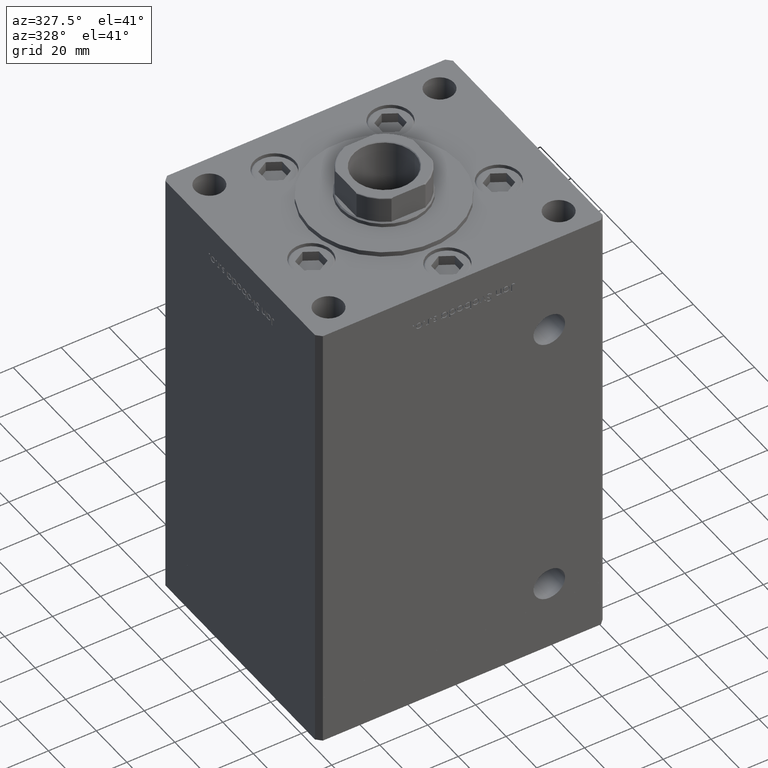
[diagram: clean part render]
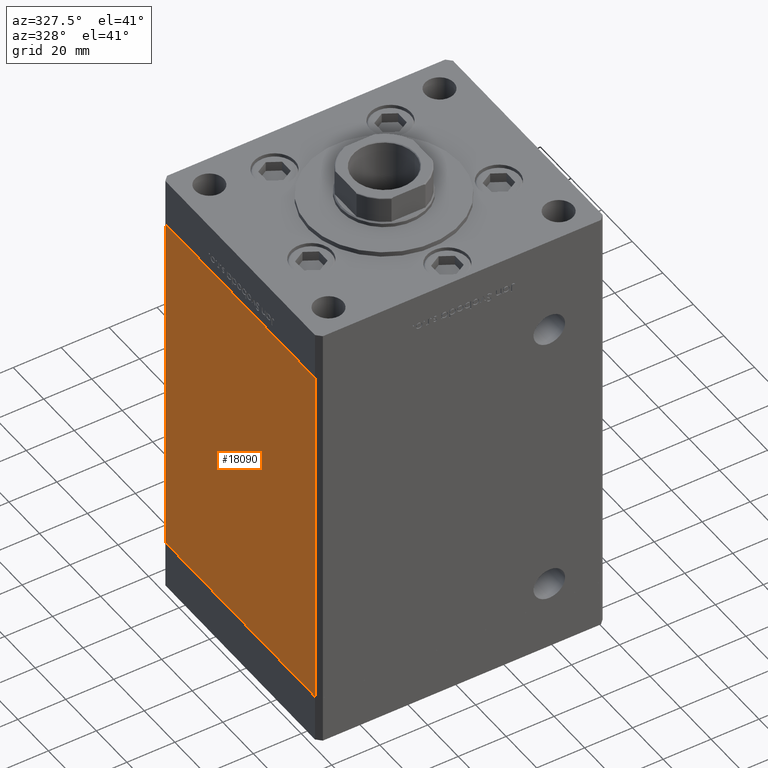
[diagram: same view with one face highlighted and labeled with its STEP entity id]
A machine part, auxiliary view. The second image highlights one B-rep face of the part: STEP entity #18090.
In plain terms, the highlighted planar face has unit normal (1, 0, 0).
Its self-contained STEP definition (entity closure, byte-faithful):
#484 = ORIENTED_EDGE ( 'NONE', *, *, #32690, .F. ) ;
#500 = FACE_OUTER_BOUND ( 'NONE', #3745, .T. ) ;
#3162 = ORIENTED_EDGE ( 'NONE', *, *, #49198, .T. ) ;
#3359 = DIRECTION ( 'NONE',  ( 2.832201593431521726E-16, -1.000000000000000000, 0.000000000000000000 ) ) ;
#3666 = VECTOR ( 'NONE', #4375, 1000.000000000000000 ) ;
#3745 = EDGE_LOOP ( 'NONE', ( #33257, #484, #36085, #3162 ) ) ;
#4375 = DIRECTION ( 'NONE',  ( -0.000000000000000000, -0.000000000000000000, -1.000000000000000000 ) ) ;
#4445 = DIRECTION ( 'NONE',  ( 1.000000000000000000, 2.832201593431521726E-16, -0.000000000000000000 ) ) ;
#5383 = LINE ( 'NONE', #13266, #39351 ) ;
#5791 = CARTESIAN_POINT ( 'NONE',  ( -59.99999999999998579, -49.00000000000000000, 0.000000000000000000 ) ) ;
#7188 = VERTEX_POINT ( 'NONE', #12984 ) ;
#7659 = VECTOR ( 'NONE', #51024, 1000.000000000000000 ) ;
#9552 = VERTEX_POINT ( 'NONE', #20081 ) ;
#12984 = CARTESIAN_POINT ( 'NONE',  ( -60.00000000000001421, 49.00000000000000000, 0.000000000000000000 ) ) ;
#13266 = CARTESIAN_POINT ( 'NONE',  ( -60.00000000000001421, 49.00000000000000000, 148.5000000000000000 ) ) ;
#18090 = ADVANCED_FACE ( 'NONE', ( #500 ), #24205, .F. ) ;
#18849 = VECTOR ( 'NONE', #3359, 1000.000000000000000 ) ;
#19660 = CARTESIAN_POINT ( 'NONE',  ( -59.99999999999998579, -49.00000000000000000, 148.5000000000000000 ) ) ;
#19855 = AXIS2_PLACEMENT_3D ( 'NONE', #32887, #4445, #21032 ) ;
#20081 = CARTESIAN_POINT ( 'NONE',  ( -59.99999999999998579, -49.00000000000000000, 148.5000000000000000 ) ) ;
#20675 = CARTESIAN_POINT ( 'NONE',  ( -60.00000000000001421, 49.00000000000000000, 148.5000000000000000 ) ) ;
#21032 = DIRECTION ( 'NONE',  ( -2.832201593431521726E-16, 1.000000000000000000, 0.000000000000000000 ) ) ;
#21079 = EDGE_CURVE ( 'NONE', #7188, #49557, #35205, .T. ) ;
#24205 = PLANE ( 'NONE',  #19855 ) ;
#32690 = EDGE_CURVE ( 'NONE', #9552, #49557, #44153, .T. ) ;
#32887 = CARTESIAN_POINT ( 'NONE',  ( -60.00000000000001421, 49.00000000000000000, 148.5000000000000000 ) ) ;
#33257 = ORIENTED_EDGE ( 'NONE', *, *, #21079, .T. ) ;
#34948 = CARTESIAN_POINT ( 'NONE',  ( -60.00000000000001421, 49.00000000000000000, 0.000000000000000000 ) ) ;
#35205 = LINE ( 'NONE', #34948, #7659 ) ;
#36085 = ORIENTED_EDGE ( 'NONE', *, *, #39745, .F. ) ;
#39351 = VECTOR ( 'NONE', #41463, 1000.000000000000000 ) ;
#39454 = CARTESIAN_POINT ( 'NONE',  ( -60.00000000000001421, 49.00000000000000000, 148.5000000000000000 ) ) ;
#39745 = EDGE_CURVE ( 'NONE', #46486, #9552, #43404, .T. ) ;
#41463 = DIRECTION ( 'NONE',  ( -0.000000000000000000, -0.000000000000000000, -1.000000000000000000 ) ) ;
#43404 = LINE ( 'NONE', #39454, #18849 ) ;
#44153 = LINE ( 'NONE', #19660, #3666 ) ;
#46486 = VERTEX_POINT ( 'NONE', #20675 ) ;
#49198 = EDGE_CURVE ( 'NONE', #46486, #7188, #5383, .T. ) ;
#49557 = VERTEX_POINT ( 'NONE', #5791 ) ;
#51024 = DIRECTION ( 'NONE',  ( 2.832201593431521726E-16, -1.000000000000000000, 0.000000000000000000 ) ) ;